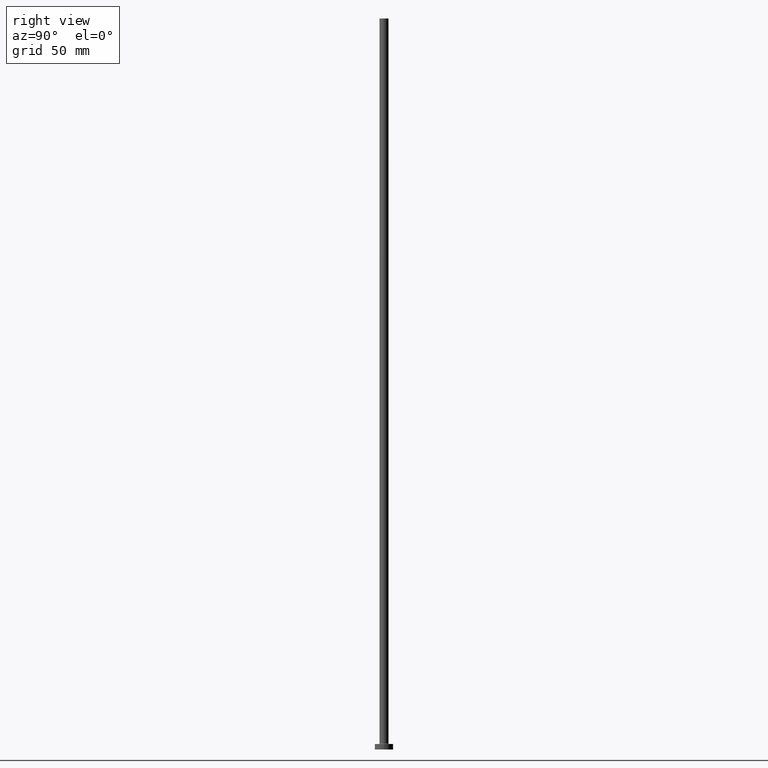
[diagram: clean part render]
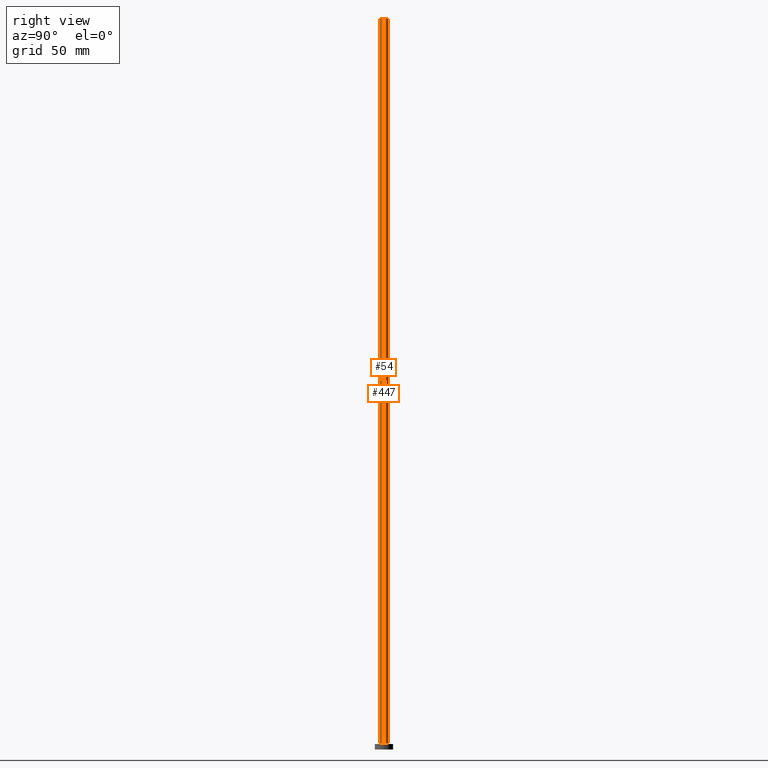
[diagram: same view with one multi-face feature highlighted, each face labeled with its STEP entity id]
A machine part, right view. The highlighted faces form ONE feature: a constant-radius fillet chain: 2 tangent blend faces with common blend radius 2.5 mm. The faces share edges in the B-rep.
Their STEP definitions:
[1] entity #447 (Cylinder):
#10 = CARTESIAN_POINT ( 'NONE',  ( -2.500000000000000000, 0.000000000000000000, 400.0000000000000000 ) ) ;
#13 = CARTESIAN_POINT ( 'NONE',  ( 2.500000000000000000, 3.061616997868383141E-16, 400.0000000000000000 ) ) ;
#31 = ORIENTED_EDGE ( 'NONE', *, *, #432, .T. ) ;
#34 = DIRECTION ( 'NONE',  ( -0.000000000000000000, -0.000000000000000000, -1.000000000000000000 ) ) ;
#50 = DIRECTION ( 'NONE',  ( 0.000000000000000000, 0.000000000000000000, 1.000000000000000000 ) ) ;
#73 = AXIS2_PLACEMENT_3D ( 'NONE', #191, #34, #311 ) ;
#96 = VERTEX_POINT ( 'NONE', #189 ) ;
#120 = CYLINDRICAL_SURFACE ( 'NONE', #73, 2.500000000000000000 ) ;
#126 = DIRECTION ( 'NONE',  ( 1.000000000000000000, 0.000000000000000000, 0.000000000000000000 ) ) ;
#130 = EDGE_CURVE ( 'NONE', #240, #142, #444, .T. ) ;
#136 = ORIENTED_EDGE ( 'NONE', *, *, #226, .F. ) ;
#142 = VERTEX_POINT ( 'NONE', #252 ) ;
#145 = DIRECTION ( 'NONE',  ( 1.000000000000000000, 0.000000000000000000, 0.000000000000000000 ) ) ;
#146 = VERTEX_POINT ( 'NONE', #10 ) ;
#169 = VECTOR ( 'NONE', #193, 1000.000000000000000 ) ;
#185 = CARTESIAN_POINT ( 'NONE',  ( 0.000000000000000000, 0.000000000000000000, 3.300000000000025135 ) ) ;
#189 = CARTESIAN_POINT ( 'NONE',  ( -2.500000000000000000, 0.000000000000000000, 3.300000000000025135 ) ) ;
#191 = CARTESIAN_POINT ( 'NONE',  ( 0.000000000000000000, 0.000000000000000000, 400.0000000000000000 ) ) ;
#192 = VECTOR ( 'NONE', #225, 1000.000000000000000 ) ;
#193 = DIRECTION ( 'NONE',  ( -0.000000000000000000, -0.000000000000000000, -1.000000000000000000 ) ) ;
#210 = ORIENTED_EDGE ( 'NONE', *, *, #306, .F. ) ;
#220 = LINE ( 'NONE', #256, #192 ) ;
#224 = FACE_OUTER_BOUND ( 'NONE', #272, .T. ) ;
#225 = DIRECTION ( 'NONE',  ( -0.000000000000000000, -0.000000000000000000, -1.000000000000000000 ) ) ;
#226 = EDGE_CURVE ( 'NONE', #146, #96, #220, .T. ) ;
#234 = CARTESIAN_POINT ( 'NONE',  ( 0.000000000000000000, 0.000000000000000000, 400.0000000000000000 ) ) ;
#240 = VERTEX_POINT ( 'NONE', #367 ) ;
#252 = CARTESIAN_POINT ( 'NONE',  ( 2.500000000000000000, 3.061616997868383141E-16, 3.300000000000025135 ) ) ;
#256 = CARTESIAN_POINT ( 'NONE',  ( -2.500000000000000000, 0.000000000000000000, 400.0000000000000000 ) ) ;
#272 = EDGE_LOOP ( 'NONE', ( #210, #372, #31, #136 ) ) ;
#273 = AXIS2_PLACEMENT_3D ( 'NONE', #234, #446, #126 ) ;
#306 = EDGE_CURVE ( 'NONE', #240, #146, #442, .T. ) ;
#311 = DIRECTION ( 'NONE',  ( -1.000000000000000000, 0.000000000000000000, 0.000000000000000000 ) ) ;
#367 = CARTESIAN_POINT ( 'NONE',  ( 2.500000000000000000, 3.061616997868383141E-16, 400.0000000000000000 ) ) ;
#372 = ORIENTED_EDGE ( 'NONE', *, *, #130, .T. ) ;
#376 = CIRCLE ( 'NONE', #393, 2.500000000000000000 ) ;
#393 = AXIS2_PLACEMENT_3D ( 'NONE', #185, #50, #145 ) ;
#432 = EDGE_CURVE ( 'NONE', #142, #96, #376, .T. ) ;
#442 = CIRCLE ( 'NONE', #273, 2.500000000000000000 ) ;
#444 = LINE ( 'NONE', #13, #169 ) ;
#446 = DIRECTION ( 'NONE',  ( 0.000000000000000000, 0.000000000000000000, 1.000000000000000000 ) ) ;
#447 = ADVANCED_FACE ( 'NONE', ( #224 ), #120, .T. ) ;
[2] entity #54 (Cylinder):
#10 = CARTESIAN_POINT ( 'NONE',  ( -2.500000000000000000, 0.000000000000000000, 400.0000000000000000 ) ) ;
#13 = CARTESIAN_POINT ( 'NONE',  ( 2.500000000000000000, 3.061616997868383141E-16, 400.0000000000000000 ) ) ;
#23 = ORIENTED_EDGE ( 'NONE', *, *, #226, .T. ) ;
#25 = ORIENTED_EDGE ( 'NONE', *, *, #350, .F. ) ;
#30 = DIRECTION ( 'NONE',  ( 1.000000000000000000, 0.000000000000000000, 0.000000000000000000 ) ) ;
#48 = DIRECTION ( 'NONE',  ( 0.000000000000000000, 0.000000000000000000, 1.000000000000000000 ) ) ;
#54 = ADVANCED_FACE ( 'NONE', ( #284 ), #434, .T. ) ;
#72 = DIRECTION ( 'NONE',  ( -0.000000000000000000, -0.000000000000000000, -1.000000000000000000 ) ) ;
#96 = VERTEX_POINT ( 'NONE', #189 ) ;
#119 = DIRECTION ( 'NONE',  ( 1.000000000000000000, 0.000000000000000000, 0.000000000000000000 ) ) ;
#130 = EDGE_CURVE ( 'NONE', #240, #142, #444, .T. ) ;
#142 = VERTEX_POINT ( 'NONE', #252 ) ;
#146 = VERTEX_POINT ( 'NONE', #10 ) ;
#169 = VECTOR ( 'NONE', #193, 1000.000000000000000 ) ;
#177 = DIRECTION ( 'NONE',  ( -1.000000000000000000, 0.000000000000000000, 0.000000000000000000 ) ) ;
#187 = EDGE_CURVE ( 'NONE', #96, #142, #317, .T. ) ;
#189 = CARTESIAN_POINT ( 'NONE',  ( -2.500000000000000000, 0.000000000000000000, 3.300000000000025135 ) ) ;
#192 = VECTOR ( 'NONE', #225, 1000.000000000000000 ) ;
#193 = DIRECTION ( 'NONE',  ( -0.000000000000000000, -0.000000000000000000, -1.000000000000000000 ) ) ;
#195 = AXIS2_PLACEMENT_3D ( 'NONE', #243, #72, #177 ) ;
#202 = DIRECTION ( 'NONE',  ( 0.000000000000000000, 0.000000000000000000, 1.000000000000000000 ) ) ;
#213 = ORIENTED_EDGE ( 'NONE', *, *, #130, .F. ) ;
#218 = EDGE_LOOP ( 'NONE', ( #213, #25, #23, #415 ) ) ;
#220 = LINE ( 'NONE', #256, #192 ) ;
#225 = DIRECTION ( 'NONE',  ( -0.000000000000000000, -0.000000000000000000, -1.000000000000000000 ) ) ;
#226 = EDGE_CURVE ( 'NONE', #146, #96, #220, .T. ) ;
#232 = CIRCLE ( 'NONE', #409, 2.500000000000000000 ) ;
#240 = VERTEX_POINT ( 'NONE', #367 ) ;
#243 = CARTESIAN_POINT ( 'NONE',  ( 0.000000000000000000, 0.000000000000000000, 400.0000000000000000 ) ) ;
#252 = CARTESIAN_POINT ( 'NONE',  ( 2.500000000000000000, 3.061616997868383141E-16, 3.300000000000025135 ) ) ;
#256 = CARTESIAN_POINT ( 'NONE',  ( -2.500000000000000000, 0.000000000000000000, 400.0000000000000000 ) ) ;
#284 = FACE_OUTER_BOUND ( 'NONE', #218, .T. ) ;
#317 = CIRCLE ( 'NONE', #353, 2.500000000000000000 ) ;
#335 = CARTESIAN_POINT ( 'NONE',  ( 0.000000000000000000, 0.000000000000000000, 400.0000000000000000 ) ) ;
#350 = EDGE_CURVE ( 'NONE', #146, #240, #232, .T. ) ;
#353 = AXIS2_PLACEMENT_3D ( 'NONE', #440, #48, #119 ) ;
#367 = CARTESIAN_POINT ( 'NONE',  ( 2.500000000000000000, 3.061616997868383141E-16, 400.0000000000000000 ) ) ;
#409 = AXIS2_PLACEMENT_3D ( 'NONE', #335, #202, #30 ) ;
#415 = ORIENTED_EDGE ( 'NONE', *, *, #187, .T. ) ;
#434 = CYLINDRICAL_SURFACE ( 'NONE', #195, 2.500000000000000000 ) ;
#440 = CARTESIAN_POINT ( 'NONE',  ( 0.000000000000000000, 0.000000000000000000, 3.300000000000025135 ) ) ;
#444 = LINE ( 'NONE', #13, #169 ) ;